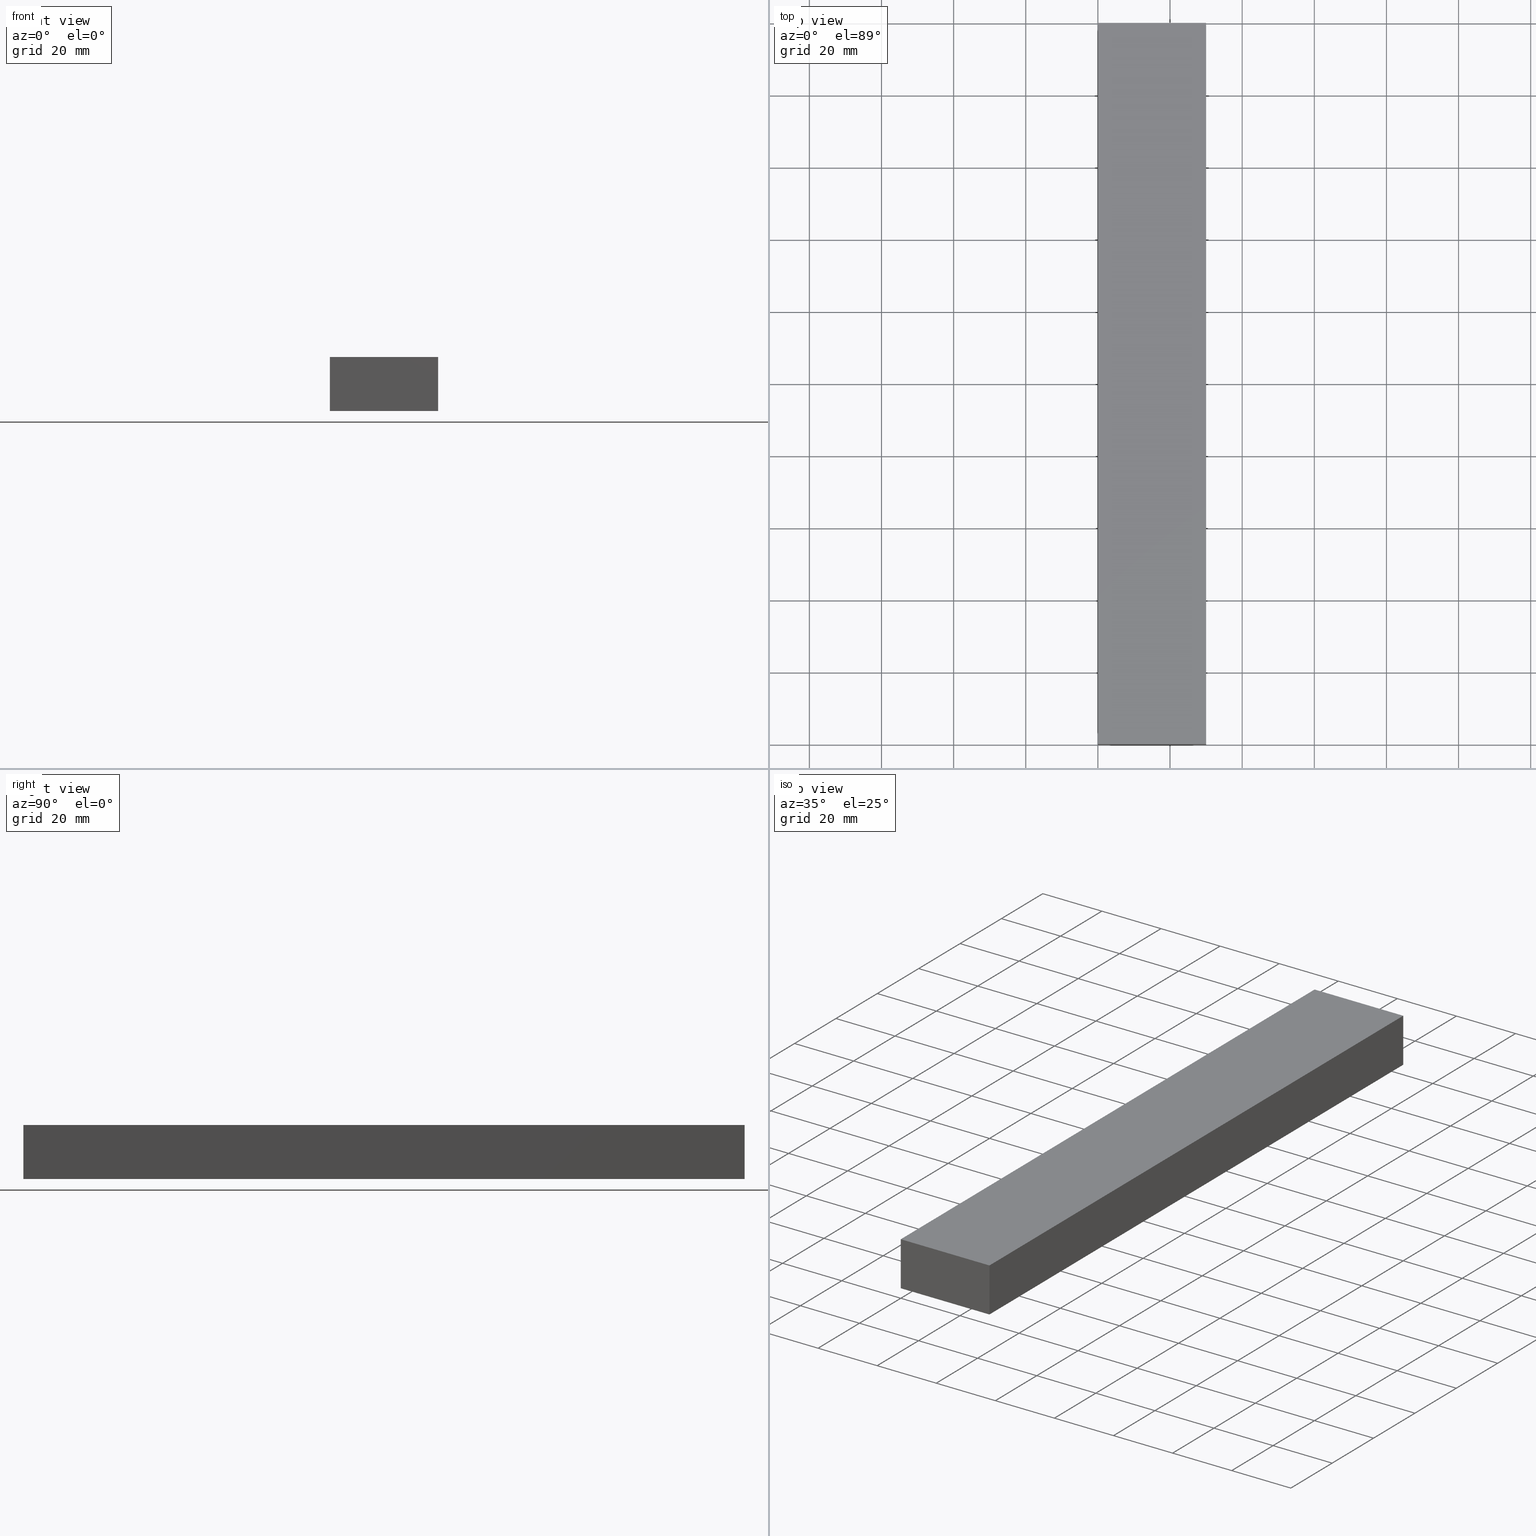
[diagram: canonical four-view strip — front | top / right | iso, engineering-drawing reading convention]
A machine part, canonical four-view strip (front | top / right | iso — engineering-drawing reading convention). The complete STEP part file that produces these views, byte-faithful:
ISO-10303-21;
HEADER;
FILE_DESCRIPTION (( 'STEP AP214' ),
    '1' );
FILE_NAME ('TM_340_15.STEP',
    '2016-05-09T06:35:28',
    ( '' ),
    ( '' ),
    'SwSTEP 2.0',
    'SolidWorks 2015',
    '' );
FILE_SCHEMA (( 'AUTOMOTIVE_DESIGN' ));
ENDSEC;

DATA;
#1 = ORIENTED_EDGE ( 'NONE', *, *, #69, .F. ) ;
#2 =( NAMED_UNIT ( * ) PLANE_ANGLE_UNIT ( ) SI_UNIT ( $, .RADIAN. ) );
#3 = COLOUR_RGB ( '',0.7921568627450980000, 0.8196078431372548800, 0.9333333333333333500 ) ;
#4 =( NAMED_UNIT ( * ) SI_UNIT ( $, .STERADIAN. ) SOLID_ANGLE_UNIT ( ) );
#5 = UNCERTAINTY_MEASURE_WITH_UNIT (LENGTH_MEASURE( 1.000000000000000100E-005 ), #66, 'distance_accuracy_value', 'NONE');
#6 = ORIENTED_EDGE ( 'NONE', *, *, #227, .T. ) ;
#7 = CARTESIAN_POINT ( 'NONE',  ( 30.00000000000000000, 200.0000000000000000, -4.999999999999999100 ) ) ;
#8 = ORIENTED_EDGE ( 'NONE', *, *, #117, .F. ) ;
#9 = ORIENTED_EDGE ( 'NONE', *, *, #171, .F. ) ;
#10 = ORIENTED_EDGE ( 'NONE', *, *, #93, .F. ) ;
#11 = ORIENTED_EDGE ( 'NONE', *, *, #152, .F. ) ;
#12 = UNCERTAINTY_MEASURE_WITH_UNIT (LENGTH_MEASURE( 1.000000000000000100E-005 ), #59, 'distance_accuracy_value', 'NONE');
#13 = CARTESIAN_POINT ( 'NONE',  ( 0.0000000000000000000, 0.0000000000000000000, 0.0000000000000000000 ) ) ;
#14 = AXIS2_PLACEMENT_3D ( 'NONE', #113, #45, #131 ) ;
#15 = PLANE ( 'NONE',  #55 ) ;
#16 = DIRECTION ( 'NONE',  ( 0.0000000000000000000, 0.0000000000000000000, 1.000000000000000000 ) ) ;
#17 = DIRECTION ( 'NONE',  ( 1.000000000000000000, 0.0000000000000000000, 0.0000000000000000000 ) ) ;
#18 = ADVANCED_FACE ( 'NONE', ( #155 ), #190, .T. ) ;
#19 = DIRECTION ( 'NONE',  ( 0.0000000000000000000, 0.0000000000000000000, 1.000000000000000000 ) ) ;
#20 = CARTESIAN_POINT ( 'NONE',  ( 30.00000000000000000, 200.0000000000000000, 10.00000000000000000 ) ) ;
#21 = EDGE_CURVE ( 'NONE', #90, #84, #91, .T. ) ;
#22 =( NAMED_UNIT ( * ) SI_UNIT ( $, .STERADIAN. ) SOLID_ANGLE_UNIT ( ) );
#23 = PRODUCT_DEFINITION_CONTEXT ( 'detailed design', #196, 'design' ) ;
#24 = VERTEX_POINT ( 'NONE', #74 ) ;
#25 = PRODUCT ( 'TM_340_15', 'TM_340_15', '', ( #137 ) ) ;
#26 =( GEOMETRIC_REPRESENTATION_CONTEXT ( 3 ) GLOBAL_UNCERTAINTY_ASSIGNED_CONTEXT ( ( #41 ) ) GLOBAL_UNIT_ASSIGNED_CONTEXT ( ( #105, #2, #4 ) ) REPRESENTATION_CONTEXT ( 'NONE', 'WORKASPACE' ) );
#27 = LINE ( 'NONE', #46, #148 ) ;
#28 = ADVANCED_BREP_SHAPE_REPRESENTATION ( '', ( #65, #234 ), #120 ) ;
#29 = AXIS2_PLACEMENT_3D ( 'NONE', #205, #235, #19 ) ;
#30 = SHAPE_REPRESENTATION ( 'rubber foam', ( #234 ), #120 ) ;
#31 = FACE_OUTER_BOUND ( 'NONE', #58, .T. ) ;
#32 = VECTOR ( 'NONE', #219, 1000.000000000000000 ) ;
#33 = AXIS2_PLACEMENT_3D ( 'NONE', #121, #180, #217 ) ;
#34 = DIRECTION ( 'NONE',  ( 0.0000000000000000000, 0.0000000000000000000, -1.000000000000000000 ) ) ;
#35 = PLANE ( 'NONE',  #231 ) ;
#36 =( GEOMETRIC_REPRESENTATION_CONTEXT ( 3 ) GLOBAL_UNCERTAINTY_ASSIGNED_CONTEXT ( ( #48 ) ) GLOBAL_UNIT_ASSIGNED_CONTEXT ( ( #147, #197, #168 ) ) REPRESENTATION_CONTEXT ( 'NONE', 'WORKASPACE' ) );
#37 = ITEM_DEFINED_TRANSFORMATION ( 'NONE', 'NONE', #60,  #234 ) ;
#38 = DIRECTION ( 'NONE',  ( 0.0000000000000000000, -1.000000000000000000, 0.0000000000000000000 ) ) ;
#39 = EDGE_CURVE ( 'NONE', #97, #213, #232, .T. ) ;
#40 = VECTOR ( 'NONE', #78, 1000.000000000000000 ) ;
#41 = UNCERTAINTY_MEASURE_WITH_UNIT (LENGTH_MEASURE( 1.000000000000000100E-005 ), #105, 'distance_accuracy_value', 'NONE');
#42 = ORIENTED_EDGE ( 'NONE', *, *, #161, .T. ) ;
#43 = VECTOR ( 'NONE', #236, 1000.000000000000000 ) ;
#44 = VECTOR ( 'NONE', #156, 1000.000000000000000 ) ;
#45 = DIRECTION ( 'NONE',  ( 0.0000000000000000000, 0.0000000000000000000, 1.000000000000000000 ) ) ;
#46 = CARTESIAN_POINT ( 'NONE',  ( 30.00000000000000000, 0.0000000000000000000, -4.999999999999999100 ) ) ;
#47 = PRODUCT_DEFINITION_FORMATION_WITH_SPECIFIED_SOURCE ( 'ANY', '', #25, .NOT_KNOWN. ) ;
#48 = UNCERTAINTY_MEASURE_WITH_UNIT (LENGTH_MEASURE( 1.000000000000000100E-005 ), #147, 'distance_accuracy_value', 'NONE');
#49 = DIRECTION ( 'NONE',  ( 0.0000000000000000000, 1.000000000000000000, 0.0000000000000000000 ) ) ;
#50 = ORIENTED_EDGE ( 'NONE', *, *, #227, .F. ) ;
#51 = SHAPE_DEFINITION_REPRESENTATION ( #157, #30 ) ;
#52 = PRODUCT_RELATED_PRODUCT_CATEGORY ( 'part', '', ( #25 ) ) ;
#53 = SURFACE_STYLE_USAGE ( .BOTH. , #72 ) ;
#54 = APPLICATION_CONTEXT ( 'automotive_design' ) ;
#55 = AXIS2_PLACEMENT_3D ( 'NONE', #224, #136, #201 ) ;
#56 = PLANE ( 'NONE',  #29 ) ;
#57 = FACE_OUTER_BOUND ( 'NONE', #216, .T. ) ;
#58 = EDGE_LOOP ( 'NONE', ( #50, #10, #98, #146 ) ) ;
#59 =( LENGTH_UNIT ( ) NAMED_UNIT ( * ) SI_UNIT ( .MILLI., .METRE. ) );
#60 = AXIS2_PLACEMENT_3D ( 'NONE', #71, #176, #67 ) ;
#61 = LINE ( 'NONE', #182, #43 ) ;
#62 = VECTOR ( 'NONE', #68, 1000.000000000000000 ) ;
#63 = DIRECTION ( 'NONE',  ( 1.000000000000000000, 0.0000000000000000000, 0.0000000000000000000 ) ) ;
#64 = AXIS2_PLACEMENT_3D ( 'NONE', #142, #38, #76 ) ;
#65 = MANIFOLD_SOLID_BREP ( '�޽ - �����o��1', #177 ) ;
#66 =( LENGTH_UNIT ( ) NAMED_UNIT ( * ) SI_UNIT ( .MILLI., .METRE. ) );
#67 = DIRECTION ( 'NONE',  ( 1.000000000000000000, 0.0000000000000000000, 0.0000000000000000000 ) ) ;
#68 = DIRECTION ( 'NONE',  ( 0.0000000000000000000, 0.0000000000000000000, 1.000000000000000000 ) ) ;
#69 = EDGE_CURVE ( 'NONE', #90, #141, #112, .T. ) ;
#70 = CARTESIAN_POINT ( 'NONE',  ( 0.0000000000000000000, 0.0000000000000000000, 0.0000000000000000000 ) ) ;
#71 = CARTESIAN_POINT ( 'NONE',  ( 0.0000000000000000000, 0.0000000000000000000, 0.0000000000000000000 ) ) ;
#72 = SURFACE_SIDE_STYLE ('',( #110 ) ) ;
#73 = FACE_OUTER_BOUND ( 'NONE', #151, .T. ) ;
#74 = CARTESIAN_POINT ( 'NONE',  ( 0.0000000000000000000, 0.0000000000000000000, -4.999999999999999100 ) ) ;
#75 = ORIENTED_EDGE ( 'NONE', *, *, #152, .T. ) ;
#76 = DIRECTION ( 'NONE',  ( 0.0000000000000000000, -0.0000000000000000000, -1.000000000000000000 ) ) ;
#77 = LINE ( 'NONE', #202, #44 ) ;
#78 = DIRECTION ( 'NONE',  ( -1.000000000000000000, 0.0000000000000000000, 0.0000000000000000000 ) ) ;
#79 = LINE ( 'NONE', #106, #81 ) ;
#80 = LINE ( 'NONE', #86, #62 ) ;
#81 = VECTOR ( 'NONE', #222, 1000.000000000000000 ) ;
#82 = FILL_AREA_STYLE ('',( #195 ) ) ;
#83 = LINE ( 'NONE', #159, #40 ) ;
#84 = VERTEX_POINT ( 'NONE', #199 ) ;
#85 =( GEOMETRIC_REPRESENTATION_CONTEXT ( 3 ) GLOBAL_UNCERTAINTY_ASSIGNED_CONTEXT ( ( #12 ) ) GLOBAL_UNIT_ASSIGNED_CONTEXT ( ( #59, #207, #203 ) ) REPRESENTATION_CONTEXT ( 'NONE', 'WORKASPACE' ) );
#86 = CARTESIAN_POINT ( 'NONE',  ( 0.0000000000000000000, 200.0000000000000000, -4.999999999999999100 ) ) ;
#87 = CARTESIAN_POINT ( 'NONE',  ( 0.0000000000000000000, 0.0000000000000000000, 10.00000000000000000 ) ) ;
#88 = EDGE_LOOP ( 'NONE', ( #211, #9, #75, #184 ) ) ;
#89 = PLANE ( 'NONE',  #64 ) ;
#90 = VERTEX_POINT ( 'NONE', #7 ) ;
#91 = LINE ( 'NONE', #185, #111 ) ;
#92 = ADVANCED_FACE ( 'NONE', ( #123 ), #56, .T. ) ;
#93 = EDGE_CURVE ( 'NONE', #153, #213, #27, .T. ) ;
#94 = STYLED_ITEM ( 'NONE', ( #128 ), #65 ) ;
#95 = SURFACE_STYLE_FILL_AREA ( #82 ) ;
#96 = SHAPE_DEFINITION_REPRESENTATION ( #206, #193 ) ;
#97 = VERTEX_POINT ( 'NONE', #103 ) ;
#98 = ORIENTED_EDGE ( 'NONE', *, *, #233, .T. ) ;
#99 = EDGE_CURVE ( 'NONE', #84, #204, #80, .T. ) ;
#100 = ORIENTED_EDGE ( 'NONE', *, *, #39, .T. ) ;
#101 = CARTESIAN_POINT ( 'NONE',  ( 30.00000000000000000, 0.0000000000000000000, 10.00000000000000000 ) ) ;
#102 = ORIENTED_EDGE ( 'NONE', *, *, #163, .T. ) ;
#103 = CARTESIAN_POINT ( 'NONE',  ( 0.0000000000000000000, 0.0000000000000000000, 10.00000000000000000 ) ) ;
#104 = SHAPE_REPRESENTATION_RELATIONSHIP ( 'NONE' , 'NONE' ,  #30, #28 ) ;
#105 =( LENGTH_UNIT ( ) NAMED_UNIT ( * ) SI_UNIT ( .MILLI., .METRE. ) );
#106 = CARTESIAN_POINT ( 'NONE',  ( 0.0000000000000000000, 200.0000000000000000, 10.00000000000000000 ) ) ;
#107 = ADVANCED_FACE ( 'NONE', ( #57 ), #15, .T. ) ;
#108 = EDGE_LOOP ( 'NONE', ( #8, #212, #42, #181 ) ) ;
#109 = ORIENTED_EDGE ( 'NONE', *, *, #161, .F. ) ;
#110 = SURFACE_STYLE_FILL_AREA ( #209 ) ;
#111 = VECTOR ( 'NONE', #162, 1000.000000000000000 ) ;
#112 = LINE ( 'NONE', #238, #119 ) ;
#113 = CARTESIAN_POINT ( 'NONE',  ( 0.0000000000000000000, 0.0000000000000000000, 0.0000000000000000000 ) ) ;
#114 = APPLICATION_CONTEXT ( 'automotive_design' ) ;
#115 =( REPRESENTATION_RELATIONSHIP ('NONE','NONE', #193, #30 ) REPRESENTATION_RELATIONSHIP_WITH_TRANSFORMATION ( #37 )SHAPE_REPRESENTATION_RELATIONSHIP( ) );
#116 = CARTESIAN_POINT ( 'NONE',  ( 0.0000000000000000000, 0.0000000000000000000, -4.999999999999999100 ) ) ;
#117 = EDGE_CURVE ( 'NONE', #204, #97, #79, .T. ) ;
#118 = PRODUCT_DEFINITION_SHAPE ( 'NONE', 'NONE',  #239 ) ;
#119 = VECTOR ( 'NONE', #138, 1000.000000000000000 ) ;
#120 =( GEOMETRIC_REPRESENTATION_CONTEXT ( 3 ) GLOBAL_UNCERTAINTY_ASSIGNED_CONTEXT ( ( #5 ) ) GLOBAL_UNIT_ASSIGNED_CONTEXT ( ( #66, #170, #22 ) ) REPRESENTATION_CONTEXT ( 'NONE', 'WORKASPACE' ) );
#121 = CARTESIAN_POINT ( 'NONE',  ( 30.00000000000000000, 200.0000000000000000, -4.999999999999999100 ) ) ;
#122 = PRESENTATION_STYLE_ASSIGNMENT (( #178 ) ) ;
#123 = FACE_OUTER_BOUND ( 'NONE', #108, .T. ) ;
#124 = PRODUCT_CONTEXT ( 'NONE', #114, 'mechanical' ) ;
#125 = ADVANCED_FACE ( 'NONE', ( #189 ), #89, .T. ) ;
#126 = VECTOR ( 'NONE', #49, 1000.000000000000000 ) ;
#127 = ORIENTED_EDGE ( 'NONE', *, *, #21, .T. ) ;
#128 = PRESENTATION_STYLE_ASSIGNMENT (( #53 ) ) ;
#129 = VECTOR ( 'NONE', #130, 1000.000000000000000 ) ;
#130 = DIRECTION ( 'NONE',  ( 1.000000000000000000, 0.0000000000000000000, 0.0000000000000000000 ) ) ;
#131 = DIRECTION ( 'NONE',  ( 1.000000000000000000, 0.0000000000000000000, 0.0000000000000000000 ) ) ;
#132 = CARTESIAN_POINT ( 'NONE',  ( 0.0000000000000000000, 200.0000000000000000, 10.00000000000000000 ) ) ;
#133 = LINE ( 'NONE', #116, #210 ) ;
#134 = APPLICATION_PROTOCOL_DEFINITION ( 'draft international standard', 'automotive_design', 1998, #54 ) ;
#135 = CARTESIAN_POINT ( 'NONE',  ( 30.00000000000000000, 0.0000000000000000000, 10.00000000000000000 ) ) ;
#136 = DIRECTION ( 'NONE',  ( -0.0000000000000000000, 0.0000000000000000000, 1.000000000000000000 ) ) ;
#137 = PRODUCT_CONTEXT ( 'NONE', #54, 'mechanical' ) ;
#138 = DIRECTION ( 'NONE',  ( 0.0000000000000000000, 0.0000000000000000000, 1.000000000000000000 ) ) ;
#139 = ORIENTED_EDGE ( 'NONE', *, *, #163, .F. ) ;
#140 = ADVANCED_FACE ( 'NONE', ( #73 ), #35, .F. ) ;
#141 = VERTEX_POINT ( 'NONE', #20 ) ;
#142 = CARTESIAN_POINT ( 'NONE',  ( 0.0000000000000000000, 0.0000000000000000000, -4.999999999999999100 ) ) ;
#143 = ADVANCED_FACE ( 'NONE', ( #31 ), #188, .T. ) ;
#144 = PRODUCT_DEFINITION_CONTEXT ( 'detailed design', #164, 'design' ) ;
#145 = PRODUCT_DEFINITION ( 'UNKNOWN', '', #230, #23 ) ;
#146 = ORIENTED_EDGE ( 'NONE', *, *, #69, .T. ) ;
#147 =( LENGTH_UNIT ( ) NAMED_UNIT ( * ) SI_UNIT ( .MILLI., .METRE. ) );
#148 = VECTOR ( 'NONE', #237, 1000.000000000000000 ) ;
#149 = PRODUCT_DEFINITION ( 'UNKNOWN', '', #47, #144 ) ;
#150 = STYLED_ITEM ( 'NONE', ( #122 ), #28 ) ;
#151 = EDGE_LOOP ( 'NONE', ( #109, #186, #208, #11 ) ) ;
#152 = EDGE_CURVE ( 'NONE', #24, #153, #228, .T. ) ;
#153 = VERTEX_POINT ( 'NONE', #226 ) ;
#154 = MECHANICAL_DESIGN_GEOMETRIC_PRESENTATION_REPRESENTATION (  '', ( #150 ), #26 ) ;
#155 = FACE_OUTER_BOUND ( 'NONE', #179, .T. ) ;
#156 = DIRECTION ( 'NONE',  ( 0.0000000000000000000, -1.000000000000000000, 0.0000000000000000000 ) ) ;
#157 = PRODUCT_DEFINITION_SHAPE ( 'NONE', 'NONE',  #145 ) ;
#158 = FILL_AREA_STYLE_COLOUR ( '', #160 ) ;
#159 = CARTESIAN_POINT ( 'NONE',  ( 30.00000000000000000, 200.0000000000000000, 10.00000000000000000 ) ) ;
#160 = COLOUR_RGB ( '',0.7921568627450980000, 0.8196078431372548800, 0.9333333333333333500 ) ;
#161 = EDGE_CURVE ( 'NONE', #84, #24, #77, .T. ) ;
#162 = DIRECTION ( 'NONE',  ( -1.000000000000000000, 0.0000000000000000000, 0.0000000000000000000 ) ) ;
#163 = EDGE_CURVE ( 'NONE', #141, #204, #83, .T. ) ;
#164 = APPLICATION_CONTEXT ( 'automotive_design' ) ;
#165 = APPLICATION_PROTOCOL_DEFINITION ( 'draft international standard', 'automotive_design', 1998, #164 ) ;
#166 = DIRECTION ( 'NONE',  ( 1.000000000000000000, 0.0000000000000000000, 0.0000000000000000000 ) ) ;
#167 = LINE ( 'NONE', #135, #126 ) ;
#168 =( NAMED_UNIT ( * ) SI_UNIT ( $, .STERADIAN. ) SOLID_ANGLE_UNIT ( ) );
#169 = PRESENTATION_LAYER_ASSIGNMENT (  '', '', ( #150 ) ) ;
#170 =( NAMED_UNIT ( * ) PLANE_ANGLE_UNIT ( ) SI_UNIT ( $, .RADIAN. ) );
#171 = EDGE_CURVE ( 'NONE', #24, #97, #133, .T. ) ;
#172 = AXIS2_PLACEMENT_3D ( 'NONE', #13, #16, #17 ) ;
#173 = APPLICATION_PROTOCOL_DEFINITION ( 'draft international standard', 'automotive_design', 1998, #114 ) ;
#174 = PRODUCT ( 'rubber foam', 'rubber foam', '', ( #124 ) ) ;
#175 = CARTESIAN_POINT ( 'NONE',  ( 0.0000000000000000000, 0.0000000000000000000, -4.999999999999999100 ) ) ;
#176 = DIRECTION ( 'NONE',  ( 0.0000000000000000000, 0.0000000000000000000, 1.000000000000000000 ) ) ;
#177 = CLOSED_SHELL ( 'NONE', ( #92, #18, #143, #125, #140, #107 ) ) ;
#178 = SURFACE_STYLE_USAGE ( .BOTH. , #215 ) ;
#179 = EDGE_LOOP ( 'NONE', ( #139, #1, #127, #223 ) ) ;
#180 = DIRECTION ( 'NONE',  ( 0.0000000000000000000, 1.000000000000000000, -0.0000000000000000000 ) ) ;
#181 = ORIENTED_EDGE ( 'NONE', *, *, #171, .T. ) ;
#182 = CARTESIAN_POINT ( 'NONE',  ( 30.00000000000000000, 0.0000000000000000000, -4.999999999999999100 ) ) ;
#183 = PRESENTATION_LAYER_ASSIGNMENT (  '', '', ( #94 ) ) ;
#184 = ORIENTED_EDGE ( 'NONE', *, *, #93, .T. ) ;
#185 = CARTESIAN_POINT ( 'NONE',  ( 30.00000000000000000, 200.0000000000000000, -4.999999999999999100 ) ) ;
#186 = ORIENTED_EDGE ( 'NONE', *, *, #21, .F. ) ;
#187 = CARTESIAN_POINT ( 'NONE',  ( 0.0000000000000000000, 0.0000000000000000000, -4.999999999999999100 ) ) ;
#188 = PLANE ( 'NONE',  #192 ) ;
#189 = FACE_OUTER_BOUND ( 'NONE', #88, .T. ) ;
#190 = PLANE ( 'NONE',  #33 ) ;
#191 = PRODUCT_RELATED_PRODUCT_CATEGORY ( 'part', '', ( #174 ) ) ;
#192 = AXIS2_PLACEMENT_3D ( 'NONE', #218, #166, #34 ) ;
#193 = SHAPE_REPRESENTATION ( 'TM_340_15', ( #14, #60 ), #85 ) ;
#194 = APPLICATION_PROTOCOL_DEFINITION ( 'draft international standard', 'automotive_design', 1998, #196 ) ;
#195 = FILL_AREA_STYLE_COLOUR ( '', #3 ) ;
#196 = APPLICATION_CONTEXT ( 'automotive_design' ) ;
#197 =( NAMED_UNIT ( * ) PLANE_ANGLE_UNIT ( ) SI_UNIT ( $, .RADIAN. ) );
#198 = CONTEXT_DEPENDENT_SHAPE_REPRESENTATION ( #115, #118 ) ;
#199 = CARTESIAN_POINT ( 'NONE',  ( 0.0000000000000000000, 200.0000000000000000, -4.999999999999999100 ) ) ;
#200 = DIRECTION ( 'NONE',  ( 0.0000000000000000000, 0.0000000000000000000, 1.000000000000000000 ) ) ;
#201 = DIRECTION ( 'NONE',  ( 1.000000000000000000, 0.0000000000000000000, 0.0000000000000000000 ) ) ;
#202 = CARTESIAN_POINT ( 'NONE',  ( 0.0000000000000000000, 200.0000000000000000, -4.999999999999999100 ) ) ;
#203 =( NAMED_UNIT ( * ) SI_UNIT ( $, .STERADIAN. ) SOLID_ANGLE_UNIT ( ) );
#204 = VERTEX_POINT ( 'NONE', #132 ) ;
#205 = CARTESIAN_POINT ( 'NONE',  ( 0.0000000000000000000, 200.0000000000000000, -4.999999999999999100 ) ) ;
#206 = PRODUCT_DEFINITION_SHAPE ( 'NONE', 'NONE',  #149 ) ;
#207 =( NAMED_UNIT ( * ) PLANE_ANGLE_UNIT ( ) SI_UNIT ( $, .RADIAN. ) );
#208 = ORIENTED_EDGE ( 'NONE', *, *, #233, .F. ) ;
#209 = FILL_AREA_STYLE ('',( #158 ) ) ;
#210 = VECTOR ( 'NONE', #220, 1000.000000000000000 ) ;
#211 = ORIENTED_EDGE ( 'NONE', *, *, #39, .F. ) ;
#212 = ORIENTED_EDGE ( 'NONE', *, *, #99, .F. ) ;
#213 = VERTEX_POINT ( 'NONE', #101 ) ;
#214 = MECHANICAL_DESIGN_GEOMETRIC_PRESENTATION_REPRESENTATION (  '', ( #94 ), #36 ) ;
#215 = SURFACE_SIDE_STYLE ('',( #95 ) ) ;
#216 = EDGE_LOOP ( 'NONE', ( #229, #100, #6, #102 ) ) ;
#217 = DIRECTION ( 'NONE',  ( 0.0000000000000000000, 0.0000000000000000000, 1.000000000000000000 ) ) ;
#218 = CARTESIAN_POINT ( 'NONE',  ( 30.00000000000000000, 0.0000000000000000000, -4.999999999999999100 ) ) ;
#219 = DIRECTION ( 'NONE',  ( 1.000000000000000000, 0.0000000000000000000, 0.0000000000000000000 ) ) ;
#220 = DIRECTION ( 'NONE',  ( 0.0000000000000000000, 0.0000000000000000000, 1.000000000000000000 ) ) ;
#221 = DIRECTION ( 'NONE',  ( 1.000000000000000000, 0.0000000000000000000, 0.0000000000000000000 ) ) ;
#222 = DIRECTION ( 'NONE',  ( 0.0000000000000000000, -1.000000000000000000, 0.0000000000000000000 ) ) ;
#223 = ORIENTED_EDGE ( 'NONE', *, *, #99, .T. ) ;
#224 = CARTESIAN_POINT ( 'NONE',  ( 0.0000000000000000000, 0.0000000000000000000, 10.00000000000000000 ) ) ;
#225 = DIRECTION ( 'NONE',  ( -0.0000000000000000000, 0.0000000000000000000, 1.000000000000000000 ) ) ;
#226 = CARTESIAN_POINT ( 'NONE',  ( 30.00000000000000000, 0.0000000000000000000, -4.999999999999999100 ) ) ;
#227 = EDGE_CURVE ( 'NONE', #213, #141, #167, .T. ) ;
#228 = LINE ( 'NONE', #187, #129 ) ;
#229 = ORIENTED_EDGE ( 'NONE', *, *, #117, .T. ) ;
#230 = PRODUCT_DEFINITION_FORMATION_WITH_SPECIFIED_SOURCE ( 'ANY', '', #174, .NOT_KNOWN. ) ;
#231 = AXIS2_PLACEMENT_3D ( 'NONE', #175, #225, #221 ) ;
#232 = LINE ( 'NONE', #87, #32 ) ;
#233 = EDGE_CURVE ( 'NONE', #153, #90, #61, .T. ) ;
#234 = AXIS2_PLACEMENT_3D ( 'NONE', #70, #200, #63 ) ;
#235 = DIRECTION ( 'NONE',  ( -1.000000000000000000, 0.0000000000000000000, 0.0000000000000000000 ) ) ;
#236 = DIRECTION ( 'NONE',  ( 0.0000000000000000000, 1.000000000000000000, 0.0000000000000000000 ) ) ;
#237 = DIRECTION ( 'NONE',  ( 0.0000000000000000000, 0.0000000000000000000, 1.000000000000000000 ) ) ;
#238 = CARTESIAN_POINT ( 'NONE',  ( 30.00000000000000000, 200.0000000000000000, -4.999999999999999100 ) ) ;
#239 = NEXT_ASSEMBLY_USAGE_OCCURRENCE ( 'NAUO1', ' ', ' ', #149, #145, $ ) ;
ENDSEC;
END-ISO-10303-21;
